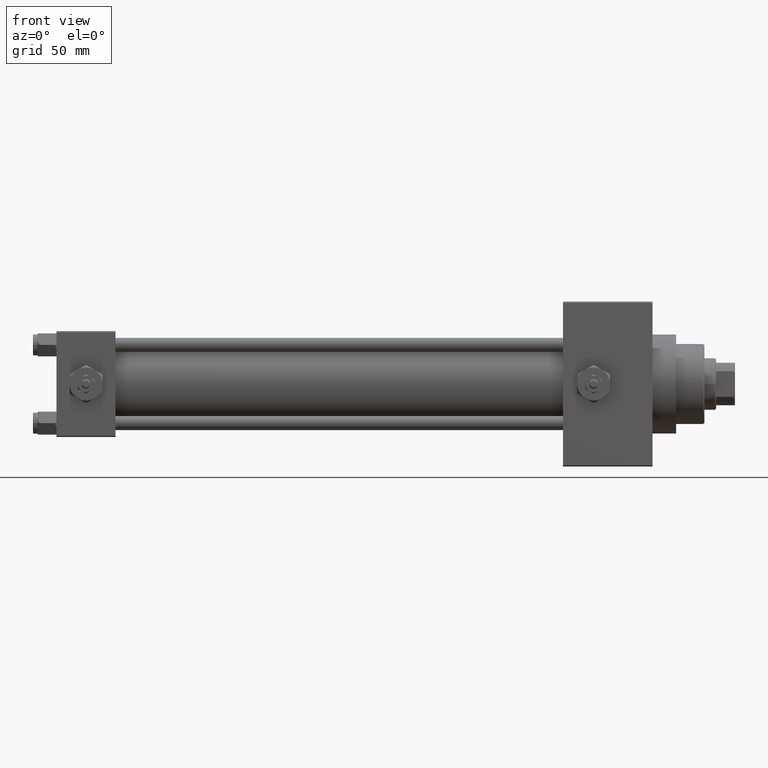
[diagram: clean part render]
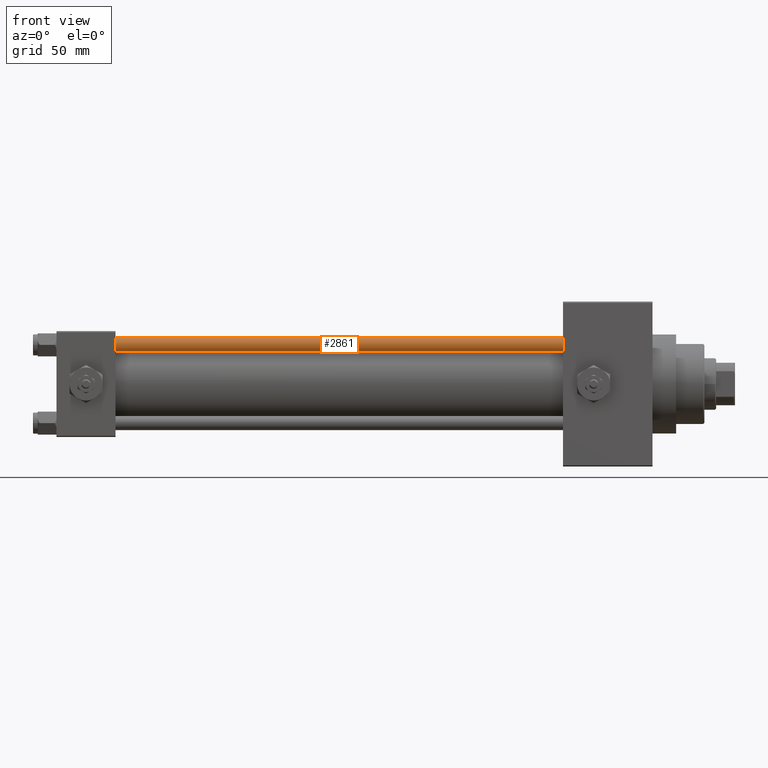
[diagram: same view with one face highlighted and labeled with its STEP entity id]
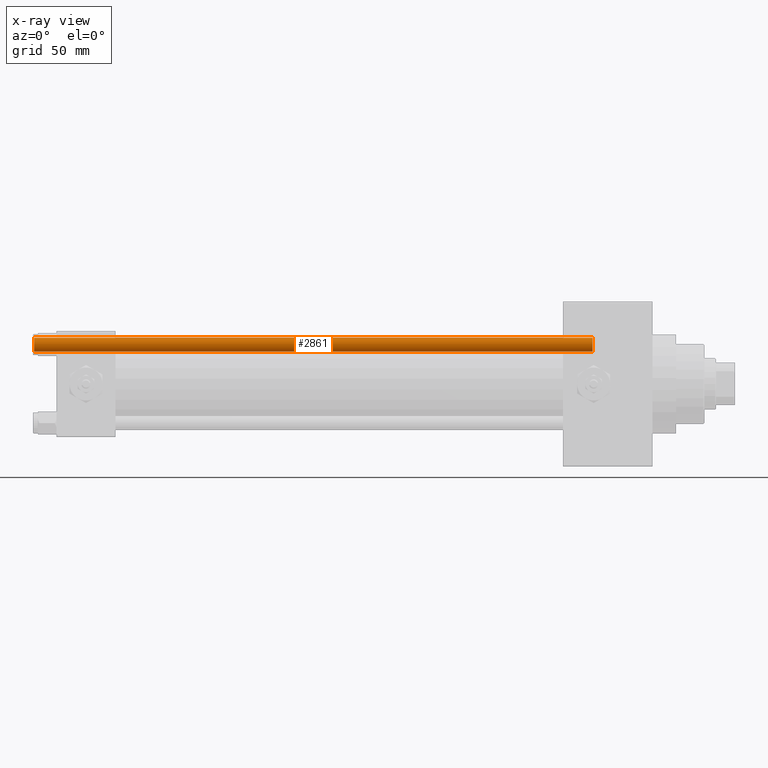
[diagram: x-ray of the same camera — body ghosted, the highlighted face saturated]
A machine part, front view. The second image highlights one B-rep face of the part: STEP entity #2861.
The next image is the same camera in x-ray: the body ghosted, the highlighted face saturated — about 0% of this face is hidden behind the body in this view.
In plain terms, the highlighted cylindrical surface (edge-blend (fillet) strip) has radius 3 mm, axis along (1, 0, 0).
Its self-contained STEP definition (entity closure, byte-faithful):
#86 = VERTEX_POINT ( 'NONE', #20979 ) ;
#1309 = ORIENTED_EDGE ( 'NONE', *, *, #14767, .T. ) ;
#2861 = ADVANCED_FACE ( 'NONE', ( #39002 ), #32042, .T. ) ;
#3569 = EDGE_LOOP ( 'NONE', ( #18497, #1309, #13303, #23445 ) ) ;
#4666 = AXIS2_PLACEMENT_3D ( 'NONE', #21417, #36560, #40796 ) ;
#5013 = CARTESIAN_POINT ( 'NONE',  ( 0.000000000000000000, 0.000000000000000000, 238.0000000000000000 ) ) ;
#5250 = CARTESIAN_POINT ( 'NONE',  ( 0.000000000000000000, 0.000000000000000000, 0.5000000000000281997 ) ) ;
#5332 = VERTEX_POINT ( 'NONE', #19817 ) ;
#5722 = VERTEX_POINT ( 'NONE', #23256 ) ;
#5996 = DIRECTION ( 'NONE',  ( -0.000000000000000000, -0.000000000000000000, -1.000000000000000000 ) ) ;
#8333 = EDGE_CURVE ( 'NONE', #86, #5332, #29796, .T. ) ;
#12083 = AXIS2_PLACEMENT_3D ( 'NONE', #5013, #5996, #47194 ) ;
#12203 = DIRECTION ( 'NONE',  ( 1.000000000000000000, 0.000000000000000000, 0.000000000000000000 ) ) ;
#13303 = ORIENTED_EDGE ( 'NONE', *, *, #45904, .T. ) ;
#14767 = EDGE_CURVE ( 'NONE', #19243, #5722, #21903, .T. ) ;
#18497 = ORIENTED_EDGE ( 'NONE', *, *, #27355, .T. ) ;
#19243 = VERTEX_POINT ( 'NONE', #31355 ) ;
#19817 = CARTESIAN_POINT ( 'NONE',  ( -3.000000000000000444, 0.000000000000000000, 0.5000000000000281997 ) ) ;
#20979 = CARTESIAN_POINT ( 'NONE',  ( -3.000000000000000444, 0.000000000000000000, 237.5000000000000284 ) ) ;
#21002 = VECTOR ( 'NONE', #37291, 1000.000000000000000 ) ;
#21417 = CARTESIAN_POINT ( 'NONE',  ( 0.000000000000000000, 0.000000000000000000, 237.5000000000000284 ) ) ;
#21903 = LINE ( 'NONE', #29610, #21002 ) ;
#23256 = CARTESIAN_POINT ( 'NONE',  ( 3.000000000000000444, 3.673940397442060361E-16, 0.5000000000000281997 ) ) ;
#23445 = ORIENTED_EDGE ( 'NONE', *, *, #8333, .F. ) ;
#23682 = CIRCLE ( 'NONE', #4666, 3.000000000000000444 ) ;
#27355 = EDGE_CURVE ( 'NONE', #86, #19243, #23682, .T. ) ;
#29074 = CARTESIAN_POINT ( 'NONE',  ( -3.000000000000000444, 0.000000000000000000, 238.0000000000000000 ) ) ;
#29610 = CARTESIAN_POINT ( 'NONE',  ( 3.000000000000000444, 3.673940397442060361E-16, 238.0000000000000000 ) ) ;
#29796 = LINE ( 'NONE', #29074, #46143 ) ;
#31355 = CARTESIAN_POINT ( 'NONE',  ( 3.000000000000000444, 3.673940397442060361E-16, 237.5000000000000284 ) ) ;
#32042 = CYLINDRICAL_SURFACE ( 'NONE', #12083, 3.000000000000000444 ) ;
#33764 = DIRECTION ( 'NONE',  ( -0.000000000000000000, -0.000000000000000000, -1.000000000000000000 ) ) ;
#36560 = DIRECTION ( 'NONE',  ( 0.000000000000000000, 0.000000000000000000, -1.000000000000000000 ) ) ;
#37291 = DIRECTION ( 'NONE',  ( -0.000000000000000000, -0.000000000000000000, -1.000000000000000000 ) ) ;
#39002 = FACE_OUTER_BOUND ( 'NONE', #3569, .T. ) ;
#39248 = DIRECTION ( 'NONE',  ( -0.000000000000000000, -0.000000000000000000, 1.000000000000000000 ) ) ;
#40796 = DIRECTION ( 'NONE',  ( 1.000000000000000000, 0.000000000000000000, 0.000000000000000000 ) ) ;
#41405 = CIRCLE ( 'NONE', #46927, 3.000000000000000444 ) ;
#45904 = EDGE_CURVE ( 'NONE', #5722, #5332, #41405, .T. ) ;
#46143 = VECTOR ( 'NONE', #33764, 1000.000000000000000 ) ;
#46927 = AXIS2_PLACEMENT_3D ( 'NONE', #5250, #39248, #12203 ) ;
#47194 = DIRECTION ( 'NONE',  ( -1.000000000000000000, 0.000000000000000000, 0.000000000000000000 ) ) ;